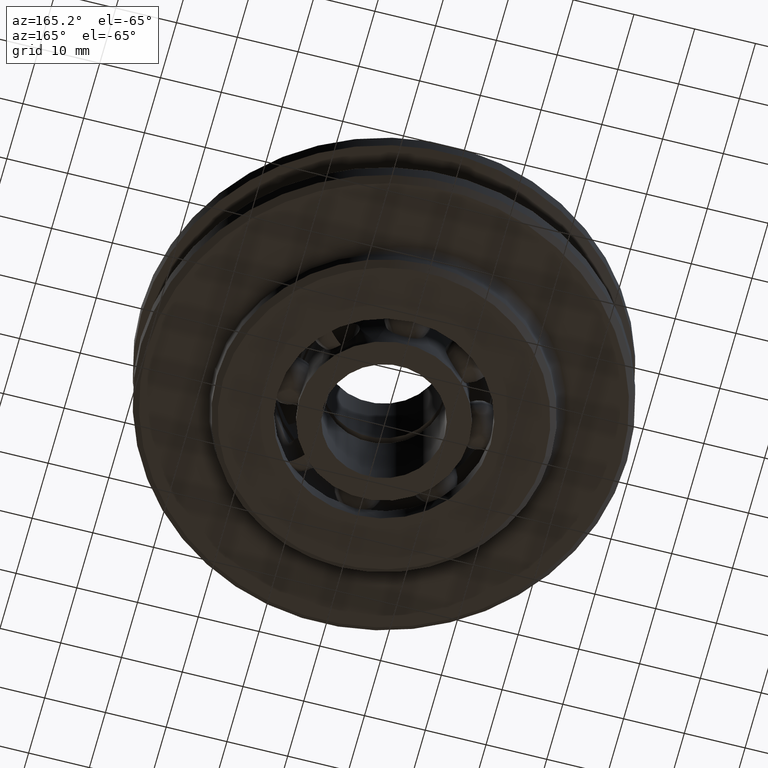
[diagram: clean part render]
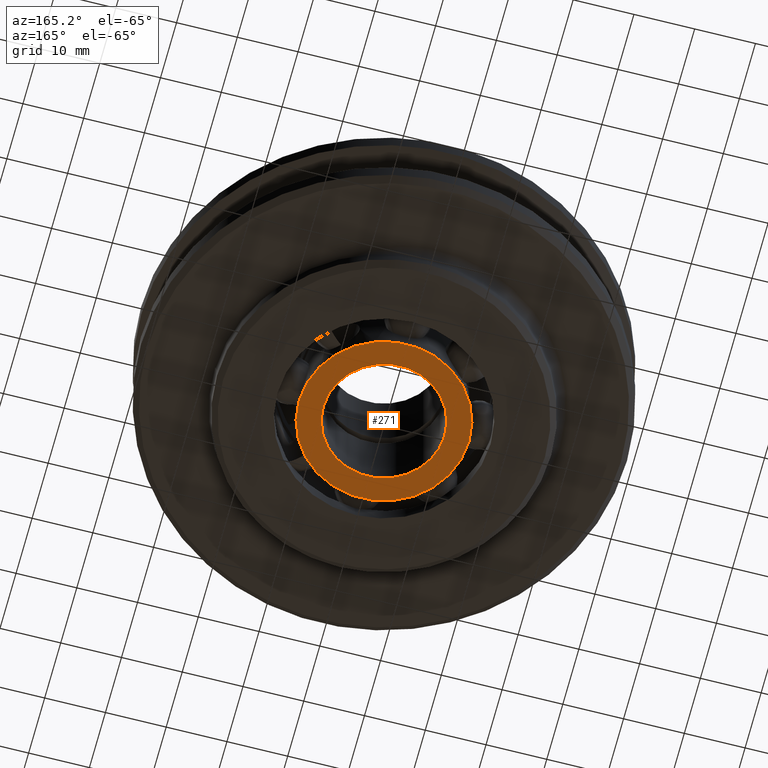
[diagram: same view with one face highlighted and labeled with its STEP entity id]
A machine part, auxiliary view. The second image highlights one B-rep face of the part: STEP entity #271.
In plain terms, the highlighted planar face has unit normal (0, 0, -1).
Its self-contained STEP definition (entity closure, byte-faithful):
#271=ADVANCED_FACE('',(#608,#609),#610,.T.);
#608=FACE_BOUND('',#1018,.T.);
#609=FACE_OUTER_BOUND('',#1019,.T.);
#610=PLANE('',#1020);
#1018=EDGE_LOOP('',(#1867,#1868));
#1019=EDGE_LOOP('',(#1869,#1870));
#1020=AXIS2_PLACEMENT_3D('',#1871,#1872,#1873);
#1867=ORIENTED_EDGE('',*,*,#2953,.T.);
#1868=ORIENTED_EDGE('',*,*,#2934,.T.);
#1869=ORIENTED_EDGE('',*,*,#2951,.T.);
#1870=ORIENTED_EDGE('',*,*,#2944,.T.);
#1871=CARTESIAN_POINT('',(0.0,0.0,-14.0));
#1872=DIRECTION('',(0.0,0.0,-1.0));
#1873=DIRECTION('',(-1.0,0.0,0.0));
#2934=EDGE_CURVE('',#3725,#3722,#3726,.T.);
#2944=EDGE_CURVE('',#3743,#3740,#3744,.T.);
#2951=EDGE_CURVE('',#3740,#3743,#3752,.T.);
#2953=EDGE_CURVE('',#3722,#3725,#3754,.T.);
#3722=VERTEX_POINT('',#7059);
#3725=VERTEX_POINT('',#7063);
#3726=CIRCLE('',#7064,10.0);
#3740=VERTEX_POINT('',#7081);
#3743=VERTEX_POINT('',#7085);
#3744=CIRCLE('',#7086,14.0);
#3752=CIRCLE('',#7095,14.0);
#3754=CIRCLE('',#7097,10.0);
#7059=CARTESIAN_POINT('',(10.0,0.0,-14.0));
#7063=CARTESIAN_POINT('',(-10.0,-1.22464679914735E-015,-14.0));
#7064=AXIS2_PLACEMENT_3D('',#8573,#8574,#8575);
#7081=CARTESIAN_POINT('',(14.0,0.0,-14.0));
#7085=CARTESIAN_POINT('',(-14.0,1.71450551880629E-015,-14.0));
#7086=AXIS2_PLACEMENT_3D('',#8589,#8590,#8591);
#7095=AXIS2_PLACEMENT_3D('',#8602,#8603,#8604);
#7097=AXIS2_PLACEMENT_3D('',#8605,#8606,#8607);
#8573=CARTESIAN_POINT('',(0.0,0.0,-14.0));
#8574=DIRECTION('',(0.0,-0.0,1.0));
#8575=DIRECTION('',(1.0,0.0,0.0));
#8589=CARTESIAN_POINT('',(0.0,0.0,-14.0));
#8590=DIRECTION('',(0.0,0.0,-1.0));
#8591=DIRECTION('',(1.0,0.0,0.0));
#8602=CARTESIAN_POINT('',(0.0,0.0,-14.0));
#8603=DIRECTION('',(0.0,0.0,-1.0));
#8604=DIRECTION('',(1.0,0.0,0.0));
#8605=CARTESIAN_POINT('',(0.0,0.0,-14.0));
#8606=DIRECTION('',(0.0,-0.0,1.0));
#8607=DIRECTION('',(1.0,0.0,0.0));